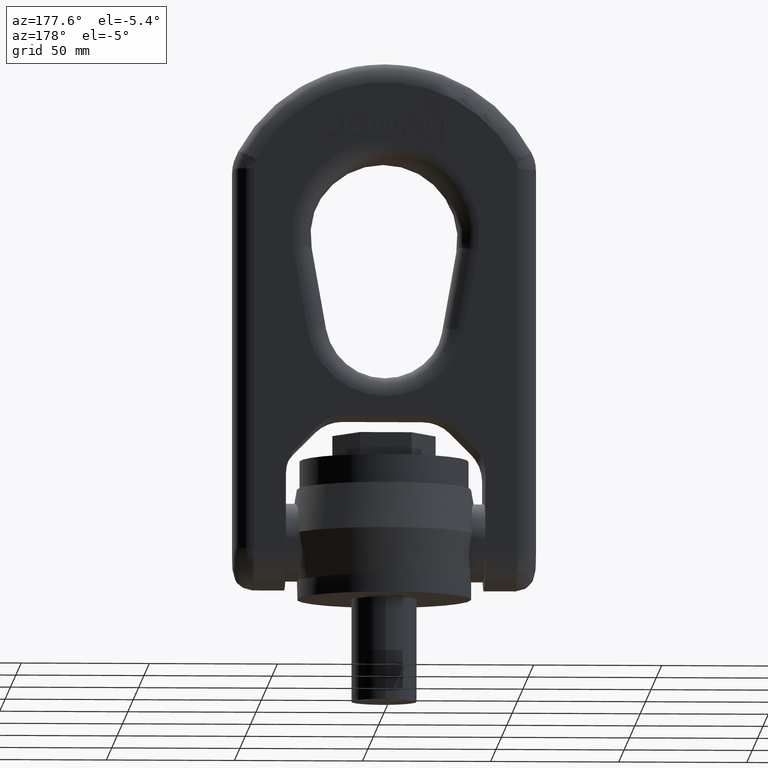
[diagram: clean part render]
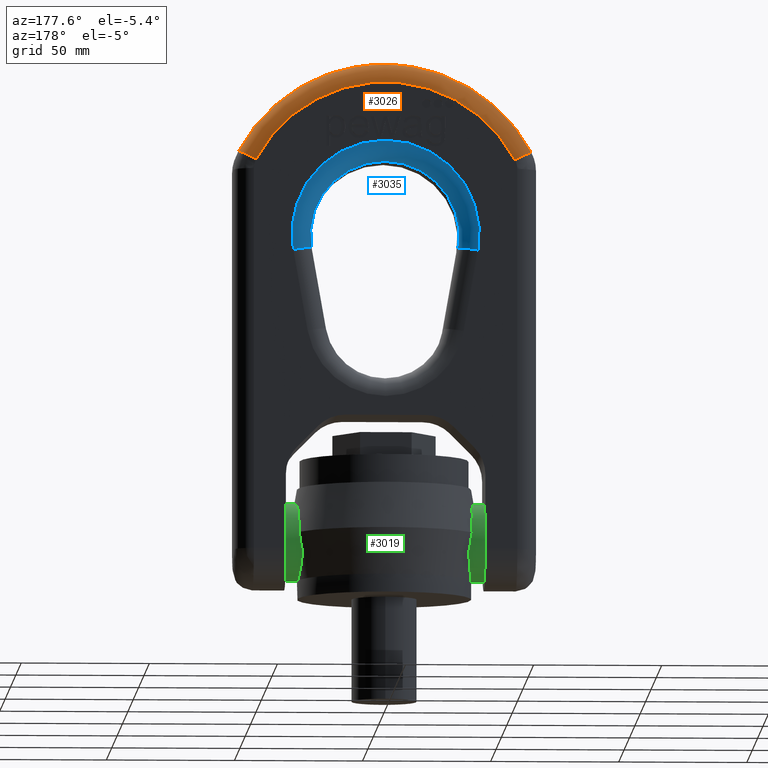
[diagram: same view with three faces highlighted in distinct colors, each labeled with its STEP entity id]
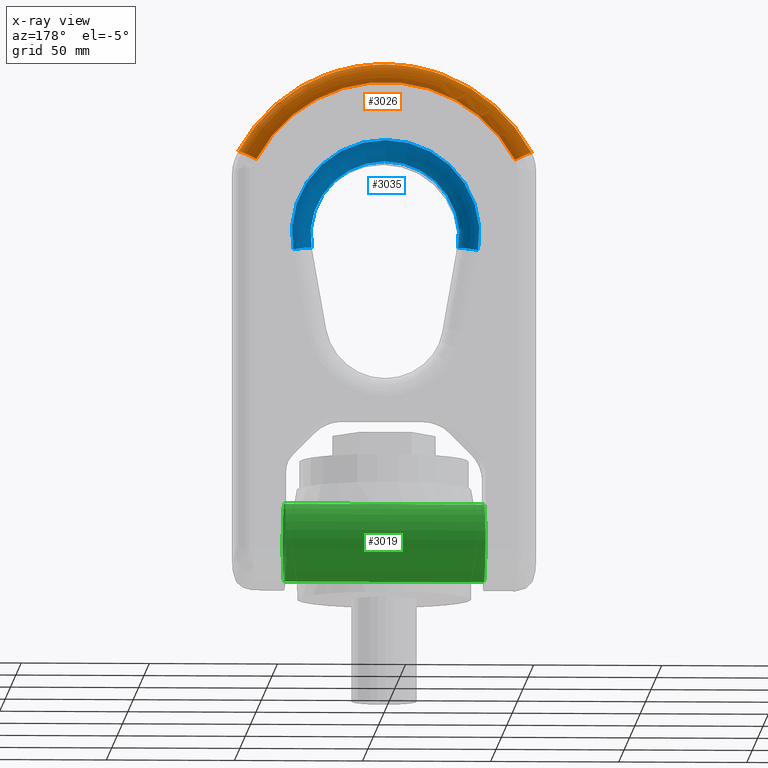
[diagram: x-ray of the same camera — body ghosted, the three highlighted faces saturated]
A machine part, auxiliary view with three faces highlighted in distinct colors.
The next image is the same camera in x-ray (body ghosted, the three faces saturated) — at least one of them is partly hidden behind the body in this view.
Their STEP definitions:

[orange] entity #3026 — the highlighted toroidal blend (fillet) surface has major radius 57.2026 mm and minor (blend) radius 7.6 mm.
#202=TOROIDAL_SURFACE('',#6041,57.2026315789474,7.6);
#2651=FACE_OUTER_BOUND('',#3419,.T.);
#3026=ADVANCED_FACE('',(#2651),#202,.T.);
#3419=EDGE_LOOP('',(#4641,#4642,#4643,#4644));
#4641=ORIENTED_EDGE('',*,*,#5734,.T.);
#4642=ORIENTED_EDGE('',*,*,#5369,.F.);
#4643=ORIENTED_EDGE('',*,*,#5736,.F.);
#4644=ORIENTED_EDGE('',*,*,#5280,.F.);
#4831=VERTEX_POINT('',#7404);
#4841=VERTEX_POINT('',#7426);
#4928=VERTEX_POINT('',#7762);
#4929=VERTEX_POINT('',#7764);
#5280=EDGE_CURVE('',#4841,#4831,#5783,.T.);
#5369=EDGE_CURVE('',#4928,#4929,#5791,.T.);
#5734=EDGE_CURVE('',#4841,#4929,#5812,.T.);
#5736=EDGE_CURVE('',#4831,#4928,#5814,.T.);
#5783=CIRCLE('',#5890,57.2026315789474);
#5791=CIRCLE('',#5904,64.8026315789474);
#5812=CIRCLE('',#6037,7.6);
#5814=CIRCLE('',#6040,7.6);
#5890=AXIS2_PLACEMENT_3D('',#7427,#6285,#6286);
#5904=AXIS2_PLACEMENT_3D('',#7763,#6360,#6361);
#6037=AXIS2_PLACEMENT_3D('',#9754,#6882,#6883);
#6040=AXIS2_PLACEMENT_3D('',#9773,#6888,#6889);
#6041=AXIS2_PLACEMENT_3D('',#9774,#6890,#6891);
#6285=DIRECTION('',(2.34291072916505E-15,1.,0.));
#6286=DIRECTION('',(-1.,2.33509724925617E-15,0.));
#6360=DIRECTION('',(-2.34291072916505E-15,-1.,0.));
#6361=DIRECTION('',(-1.,2.34231697771488E-15,0.));
#6882=DIRECTION('',(0.469339749287084,-1.28553897046954E-15,0.883017666719719));
#6883=DIRECTION('',(0.883017666719719,0.,-0.469339749287084));
#6888=DIRECTION('',(0.46933974928708,-1.28553897046953E-15,-0.883017666719721));
#6889=DIRECTION('',(-0.883017666719721,0.,-0.46933974928708));
#6890=DIRECTION('',(2.34291072916505E-15,1.,0.));
#6891=DIRECTION('',(-1.,2.34231697771488E-15,0.));
#7404=CARTESIAN_POINT('',(50.5109342670699,15.1999999999999,171.044837184877));
#7426=CARTESIAN_POINT('',(-50.5109342670699,15.2000000000001,171.044837184877));
#7427=CARTESIAN_POINT('',(1.78061215416544E-14,15.2,144.197368421053));
#7762=CARTESIAN_POINT('',(57.2218685341398,7.59999999999985,174.611819279459));
#7763=CARTESIAN_POINT('',(0.,7.59999999999998,144.197368421053));
#7764=CARTESIAN_POINT('',(-57.2218685341398,7.60000000000012,174.611819279459));
#9754=CARTESIAN_POINT('',(-50.5109342670699,7.60000000000012,171.044837184877));
#9773=CARTESIAN_POINT('',(50.5109342670699,7.59999999999988,171.044837184877));
#9774=CARTESIAN_POINT('',(0.,7.6,144.197368421053));

[blue] entity #3035 — the highlighted toroidal blend (fillet) surface has major radius 36.6 mm and minor (blend) radius 7.6 mm.
#204=TOROIDAL_SURFACE('',#6055,36.6,7.6);
#2660=FACE_OUTER_BOUND('',#3428,.T.);
#3035=ADVANCED_FACE('',(#2660),#204,.T.);
#3428=EDGE_LOOP('',(#4677,#4678,#4679,#4680));
#4677=ORIENTED_EDGE('',*,*,#5743,.T.);
#4678=ORIENTED_EDGE('',*,*,#5354,.F.);
#4679=ORIENTED_EDGE('',*,*,#5744,.T.);
#4680=ORIENTED_EDGE('',*,*,#5264,.F.);
#4828=VERTEX_POINT('',#7397);
#4829=VERTEX_POINT('',#7399);
#4913=VERTEX_POINT('',#7725);
#4915=VERTEX_POINT('',#7731);
#5264=EDGE_CURVE('',#4828,#4829,#5775,.T.);
#5354=EDGE_CURVE('',#4913,#4915,#5787,.T.);
#5743=EDGE_CURVE('',#4828,#4915,#5821,.T.);
#5744=EDGE_CURVE('',#4913,#4829,#5822,.T.);
#5775=CIRCLE('',#5882,36.6);
#5787=CIRCLE('',#5896,29.);
#5821=CIRCLE('',#6051,7.6);
#5822=CIRCLE('',#6053,7.6);
#5882=AXIS2_PLACEMENT_3D('',#7398,#6261,#6262);
#5896=AXIS2_PLACEMENT_3D('',#7730,#6333,#6334);
#6051=AXIS2_PLACEMENT_3D('',#9832,#6910,#6911);
#6053=AXIS2_PLACEMENT_3D('',#9834,#6914,#6915);
#6055=AXIS2_PLACEMENT_3D('',#9836,#6918,#6919);
#6261=DIRECTION('',(-2.34291072916505E-15,-1.,0.));
#6262=DIRECTION('',(-1.,2.32244399789245E-15,0.));
#6333=DIRECTION('',(2.34291072916505E-15,1.,0.));
#6334=DIRECTION('',(-1.,2.33290398493433E-15,0.));
#6910=DIRECTION('',(0.173648177666931,-4.75628795304343E-16,0.984807753012208));
#6911=DIRECTION('',(0.984807753012208,0.,-0.173648177666932));
#6914=DIRECTION('',(-0.173648177666931,3.17085863536229E-16,0.984807753012208));
#6915=DIRECTION('',(0.984807753012208,0.,0.173648177666932));
#6918=DIRECTION('',(2.34291072916505E-15,1.,0.));
#6919=DIRECTION('',(-1.,2.33520467919955E-15,0.));
#7397=CARTESIAN_POINT('',(36.0439637602469,15.1999999999999,135.64447669739));
#7398=CARTESIAN_POINT('',(1.78061215416544E-14,15.2,142.));
#7399=CARTESIAN_POINT('',(-36.0439637602468,15.2000000000001,135.64447669739));
#7725=CARTESIAN_POINT('',(-28.5594248373541,7.60000000000009,136.964202847659));
#7730=CARTESIAN_POINT('',(0.,7.59999999999998,142.));
#7731=CARTESIAN_POINT('',(28.5594248373541,7.59999999999992,136.964202847659));
#9832=CARTESIAN_POINT('',(36.0439637602468,7.59999999999992,135.64447669739));
#9834=CARTESIAN_POINT('',(-36.0439637602468,7.60000000000008,135.64447669739));
#9836=CARTESIAN_POINT('',(0.,7.6,142.));

[green] entity #3019 — the highlighted cylindrical surface (bore or boss wall) has radius 15.2 mm, axis along (-1, 0, 0).
#3019=ADVANCED_FACE('',(#3135,#3136),#3060,.T.);
#3060=CYLINDRICAL_SURFACE('',#6029,15.2);
#3135=FACE_BOUND('',#3411,.T.);
#3136=FACE_BOUND('',#3412,.T.);
#3411=EDGE_LOOP('',(#4613,#4614));
#3412=EDGE_LOOP('',(#4615,#4616));
#4613=ORIENTED_EDGE('',*,*,#5162,.F.);
#4614=ORIENTED_EDGE('',*,*,#5716,.F.);
#4615=ORIENTED_EDGE('',*,*,#5166,.F.);
#4616=ORIENTED_EDGE('',*,*,#5717,.F.);
#4729=VERTEX_POINT('',#7037);
#4731=VERTEX_POINT('',#7040);
#4733=VERTEX_POINT('',#7046);
#4735=VERTEX_POINT('',#7049);
#5162=EDGE_CURVE('',#4729,#4731,#5757,.T.);
#5166=EDGE_CURVE('',#4733,#4735,#5758,.T.);
#5716=EDGE_CURVE('',#4731,#4729,#5801,.T.);
#5717=EDGE_CURVE('',#4735,#4733,#5802,.T.);
#5757=CIRCLE('',#5859,15.2);
#5758=CIRCLE('',#5861,15.2);
#5801=CIRCLE('',#6012,15.2);
#5802=CIRCLE('',#6014,15.2);
#5859=AXIS2_PLACEMENT_3D('',#7039,#6165,#6166);
#5861=AXIS2_PLACEMENT_3D('',#7048,#6172,#6173);
#6012=AXIS2_PLACEMENT_3D('',#9690,#6825,#6826);
#6014=AXIS2_PLACEMENT_3D('',#9692,#6829,#6830);
#6029=AXIS2_PLACEMENT_3D('',#9714,#6866,#6867);
#6165=DIRECTION('',(-1.,0.,1.28498035257541E-16));
#6166=DIRECTION('',(0.,0.,-1.));
#6172=DIRECTION('',(1.,0.,1.28498035257541E-16));
#6173=DIRECTION('',(0.,0.,1.));
#6825=DIRECTION('',(-1.,0.,1.28498035257541E-16));
#6826=DIRECTION('',(0.,0.,-1.));
#6829=DIRECTION('',(1.,0.,1.28498035257541E-16));
#6830=DIRECTION('',(0.,0.,1.));
#6866=DIRECTION('',(-1.,0.,0.));
#6867=DIRECTION('',(0.,0.,1.));
#7037=CARTESIAN_POINT('',(-38.94,-15.2,22.2));
#7039=CARTESIAN_POINT('',(-38.94,0.,22.2));
#7040=CARTESIAN_POINT('',(-38.94,15.2000000000001,22.2));
#7046=CARTESIAN_POINT('',(38.94,-15.2,22.2));
#7048=CARTESIAN_POINT('',(38.94,0.,22.2));
#7049=CARTESIAN_POINT('',(38.94,15.1999999999999,22.2));
#9690=CARTESIAN_POINT('',(-38.94,0.,22.2));
#9692=CARTESIAN_POINT('',(38.94,0.,22.2));
#9714=CARTESIAN_POINT('',(59.,0.,22.2));